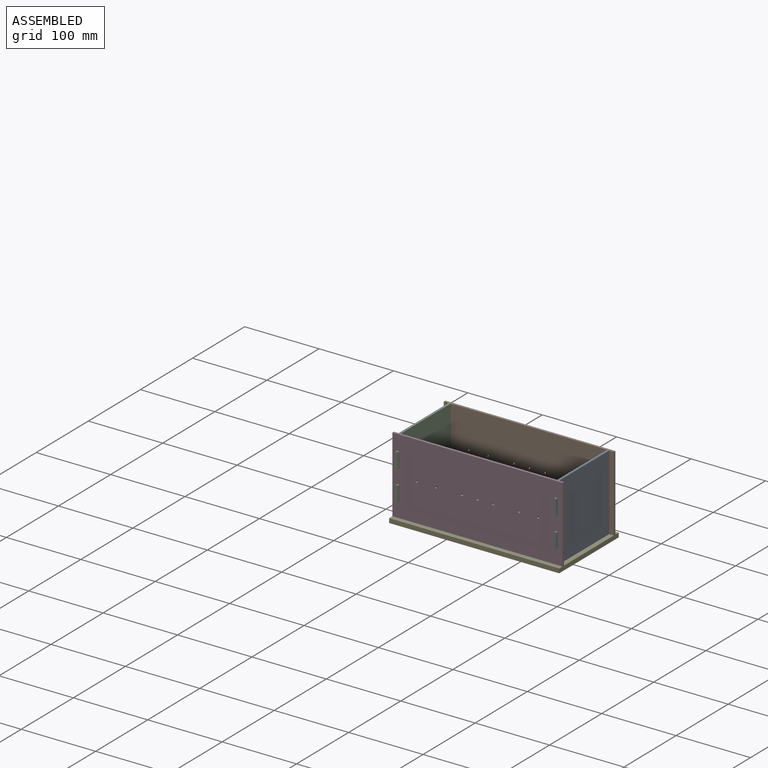
[diagram: assembled view]
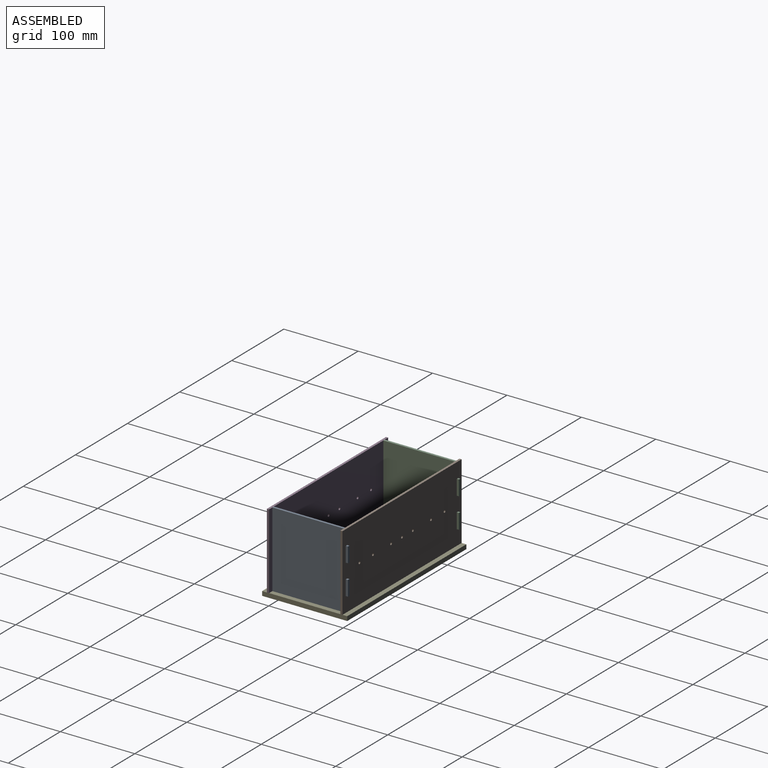
[diagram: assembled view, second angle]
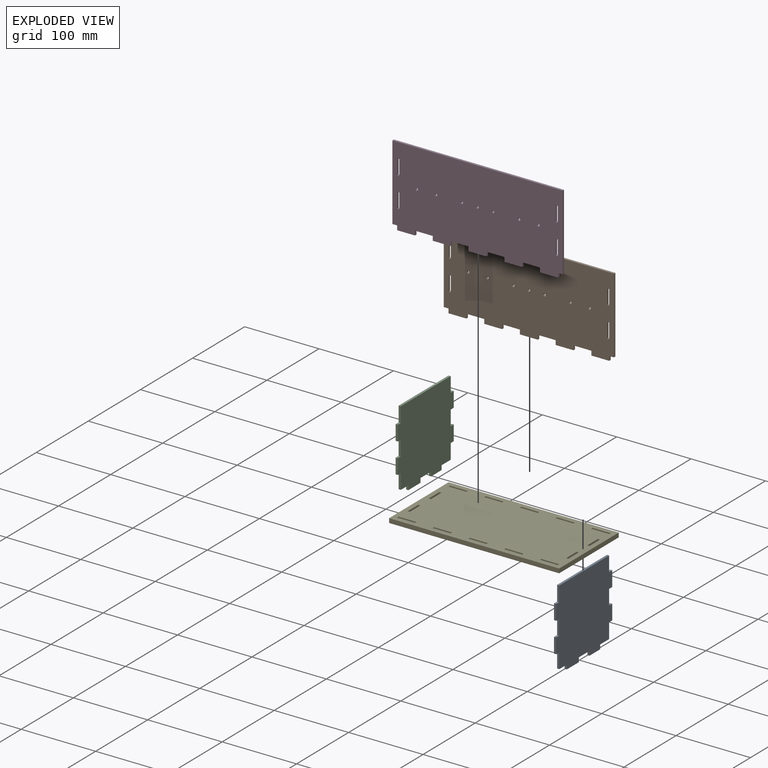
[diagram: exploded view]
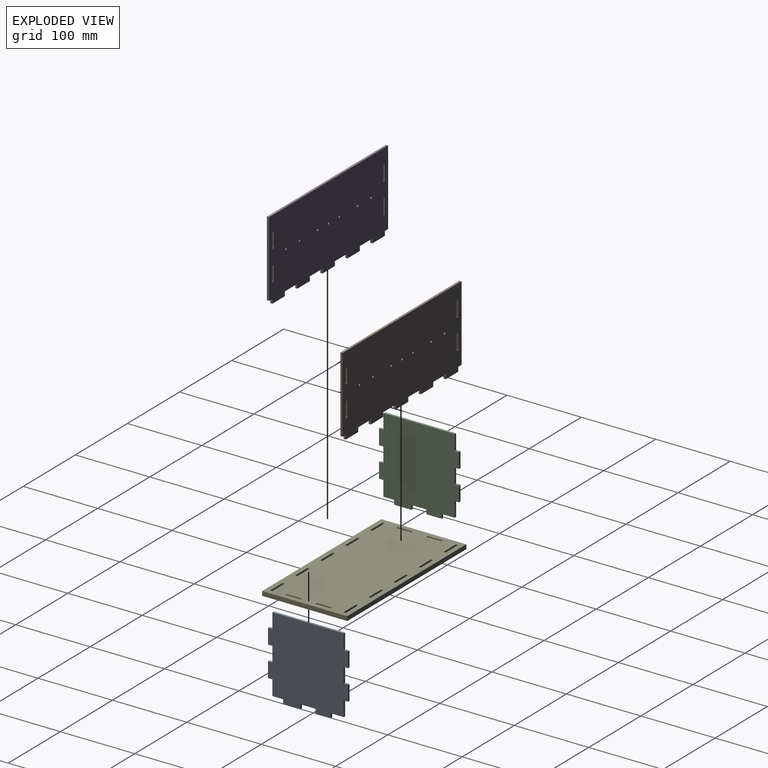
[diagram: exploded view, second angle]
ASSEMBLY  parts=5 mates=4
PART A: 30 faces, bbox 107.4x2.9x107.4 mm
  f0: plane 20.32x2.92mm, normal (-1,0,0), area 59.4mm2, adj f1,f27,f28,f29
  f1: plane 17.4x2.92mm, normal (0,0,-1), area 50.8mm2, adj f0,f2,f28,f29
  f2: plane 5.84x2.92mm, normal (-1,0,0), area 17.1mm2, adj f1,f3,f28,f29
  f3: plane 20.32x2.92mm, normal (0,0,-1), area 59.4mm2, adj f2,f4,f28,f29
  f4: plane 5.84x2.92mm, normal (1,0,0), area 17.1mm2, adj f3,f5,f28,f29
  f5: plane 20.32x2.92mm, normal (0,0,-1), area 59.4mm2, adj f4,f6,f28,f29
  f6: plane 5.84x2.92mm, normal (-1,0,0), area 17.1mm2, adj f5,f7,f28,f29
  f7: plane 23.24x2.92mm, normal (0,0,-1), area 67.9mm2, adj f6,f8,f28,f29
  f8: plane 5.84x2.92mm, normal (1,0,0), area 17.1mm2, adj f7,f9,f28,f29
  f9: plane 14.48x2.92mm, normal (0,0,-1), area 42.3mm2, adj f8,f10,f28,f29
  f10: plane 20.32x2.92mm, normal (1,0,0), area 59.4mm2, adj f9,f11,f28,f29
  f11: plane 5.84x2.92mm, normal (0,0,-1), area 17.1mm2, adj f10,f12,f28,f29
  f12: plane 20.32x2.92mm, normal (1,0,0), area 59.4mm2, adj f11,f13,f28,f29
  f13: plane 5.84x2.92mm, normal (0,0,1), area 17.1mm2, adj f12,f14,f28,f29
  f14: plane 20.32x2.92mm, normal (1,0,0), area 59.4mm2, adj f13,f15,f28,f29
  f15: plane 5.84x2.92mm, normal (0,0,-1), area 17.1mm2, adj f14,f16,f28,f29
  f16: plane 20.32x2.92mm, normal (1,0,0), area 59.4mm2, adj f15,f17,f28,f29
  f17: plane 5.84x2.92mm, normal (0,0,1), area 17.1mm2, adj f16,f18,f28,f29
  f18: plane 20.32x2.92mm, normal (1,0,0), area 59.4mm2, adj f17,f19,f28,f29
  f19: plane 95.76x2.92mm, normal (0,0,1), area 279.7mm2, adj f18,f20,f28,f29
  f20: plane 20.32x2.92mm, normal (-1,0,0), area 59.4mm2, adj f19,f21,f28,f29
  f21: plane 5.84x2.92mm, normal (0,0,1), area 17.1mm2, adj f20,f22,f28,f29
  f22: plane 20.32x2.92mm, normal (-1,0,0), area 59.4mm2, adj f21,f23,f28,f29
  f23: plane 5.84x2.92mm, normal (0,0,-1), area 17.1mm2, adj f22,f24,f28,f29
  f24: plane 20.32x2.92mm, normal (-1,0,0), area 59.4mm2, adj f23,f25,f28,f29
  f25: plane 5.84x2.92mm, normal (0,0,1), area 17.1mm2, adj f24,f26,f28,f29
  f26: plane 20.32x2.92mm, normal (-1,0,0), area 59.4mm2, adj f25,f27,f28,f29
  f27: plane 5.84x2.92mm, normal (0,0,-1), area 17.1mm2, adj f0,f26,f28,f29
  f28: plane 107.44x107.44mm, normal (0,-1,0), area 10458.3mm2, adj f0,f1,f2,f3,f4,f5,f6,f7
  f29: plane 107.44x107.44mm, normal (0,1,0), area 10458.3mm2, adj f0,f1,f2,f3,f4,f5,f6,f7
PART B: 49 faces, bbox 228.6x2.9x107.4 mm
  f0: plane 20.32x2.92mm, normal (1,0,0), area 59.4mm2, adj f1,f46,f47,f48
  f1: plane 2.92x2.92mm, normal (0,0,-1), area 8.5mm2, adj f0,f2,f47,f48
  f2: plane 20.32x2.92mm, normal (-1,0,0), area 59.4mm2, adj f1,f46,f47,f48
  f3: plane 2.92x2.92mm, normal (0,0,-1), area 8.5mm2, adj f4,f35,f47,f48
  f4: plane 20.32x2.92mm, normal (-1,0,0), area 59.4mm2, adj f3,f5,f47,f48
  f5: plane 2.92x2.92mm, normal (0,0,1), area 8.5mm2, adj f4,f35,f47,f48
  f6: plane 23.99x2.92mm, normal (0,0,-1), area 70.1mm2, adj f7,f36,f47,f48
  f7: plane 5.84x2.92mm, normal (-1,0,0), area 17.1mm2, adj f6,f8,f47,f48
  f8: plane 23.99x2.92mm, normal (0,0,-1), area 70.1mm2, adj f7,f9,f47,f48
  f9: plane 5.84x2.92mm, normal (1,0,0), area 17.1mm2, adj f8,f10,f47,f48
  f10: plane 23.99x2.92mm, normal (0,0,-1), area 70.1mm2, adj f9,f11,f47,f48
  f11: plane 5.84x2.92mm, normal (-1,0,0), area 17.1mm2, adj f10,f12,f47,f48
  f12: plane 23.99x2.92mm, normal (0,0,-1), area 70.1mm2, adj f11,f13,f47,f48
  f13: plane 5.84x2.92mm, normal (1,0,0), area 17.1mm2, adj f12,f14,f47,f48
  f14: plane 6.35x2.92mm, normal (0,0,-1), area 18.5mm2, adj f13,f15,f47,f48
  f15: plane 101.6x2.92mm, normal (1,0,0), area 296.8mm2, adj f14,f16,f47,f48
  f16: plane 228.6x2.92mm, normal (0,0,1), area 667.7mm2, adj f15,f17,f47,f48
  f17: plane 101.6x2.92mm, normal (-1,0,0), area 296.8mm2, adj f16,f18,f47,f48
  f18: plane 6.35x2.92mm, normal (0,0,-1), area 18.5mm2, adj f17,f19,f47,f48
  f19: plane 5.84x2.92mm, normal (-1,0,0), area 17.1mm2, adj f18,f20,f47,f48
  f20: plane 23.99x2.92mm, normal (0,0,-1), area 70.1mm2, adj f19,f21,f47,f48
  f21: plane 5.84x2.92mm, normal (1,0,0), area 17.1mm2, adj f20,f22,f47,f48
  f22: plane 23.99x2.92mm, normal (0,0,-1), area 70.1mm2, adj f21,f23,f47,f48
  f23: plane 5.84x2.92mm, normal (-1,0,0), area 17.1mm2, adj f22,f24,f47,f48
  f24: plane 23.99x2.92mm, normal (0,0,-1), area 70.1mm2, adj f23,f25,f47,f48
  f25: plane 5.84x2.92mm, normal (1,0,0), area 17.1mm2, adj f24,f26,f47,f48
  f26: plane 23.99x2.92mm, normal (0,0,-1), area 70.1mm2, adj f25,f27,f47,f48
  f27: plane 5.84x2.92mm, normal (-1,0,0), area 17.1mm2, adj f26,f28,f47,f48
  f28: plane 23.99x2.92mm, normal (0,0,-1), area 70.1mm2, adj f27,f36,f47,f48
  f29: plane 20.32x2.92mm, normal (1,0,0), area 59.4mm2, adj f30,f44,f47,f48
  f30: plane 2.92x2.92mm, normal (0,0,-1), area 8.5mm2, adj f29,f31,f47,f48
  f31: plane 20.32x2.92mm, normal (-1,0,0), area 59.4mm2, adj f30,f44,f47,f48
  f32: plane 2.92x2.92mm, normal (0,0,1), area 8.5mm2, adj f33,f45,f47,f48
  f33: plane 20.32x2.92mm, normal (1,0,0), area 59.4mm2, adj f32,f34,f47,f48
  f34: plane 2.92x2.92mm, normal (0,0,-1), area 8.5mm2, adj f33,f45,f47,f48
  f35: plane 20.32x2.92mm, normal (1,0,0), area 59.4mm2, adj f3,f5,f47,f48
  f36: plane 5.84x2.92mm, normal (1,0,0), area 17.1mm2, adj f6,f28,f47,f48
  f37: cylinder r=1.65mm len=3.3mm, axis (0,1,0), area 30.3mm2, adj f47,f48
  f38: cylinder r=1.65mm len=3.3mm, axis (0,1,0), area 30.3mm2, adj f47,f48
  f39: cylinder r=1.65mm len=3.3mm, axis (0,1,0), area 30.3mm2, adj f47,f48
  f40: cylinder r=1.65mm len=3.3mm, axis (0,1,0), area 30.3mm2, adj f47,f48
  f41: cylinder r=1.65mm len=3.3mm, axis (0,1,0), area 30.3mm2, adj f47,f48
  f42: cylinder r=1.65mm len=3.3mm, axis (0,1,0), area 30.3mm2, adj f47,f48
  f43: cylinder r=1.65mm len=3.3mm, axis (0,1,0), area 30.3mm2, adj f47,f48
  f44: plane 2.92x2.92mm, normal (0,0,1), area 8.5mm2, adj f29,f31,f47,f48
  f45: plane 20.32x2.92mm, normal (-1,0,0), area 59.4mm2, adj f32,f34,f47,f48
  f46: plane 2.92x2.92mm, normal (0,0,1), area 8.5mm2, adj f0,f2,f47,f48
  f47: plane 228.6x107.44mm, normal (0,-1,0), area 23629.1mm2, adj f0,f1,f2,f3,f4,f5,f6,f7
  f48: plane 228.6x107.44mm, normal (0,1,0), area 23629.1mm2, adj f0,f1,f2,f3,f4,f5,f6,f7
PART C: same geometry as A
PART D: same geometry as B
PART E: 62 faces, bbox 228.6x114.3x5.8 mm
  f0: plane 5.84x2.92mm, normal (1,0,0), area 17.1mm2, adj f1,f59,f60,f61
  f1: plane 23.99x5.84mm, normal (0,-1,0), area 140.1mm2, adj f0,f2,f60,f61
  f2: plane 5.84x2.92mm, normal (-1,0,0), area 17.1mm2, adj f1,f59,f60,f61
  f3: plane 5.84x2.92mm, normal (1,0,0), area 17.1mm2, adj f4,f45,f60,f61
  f4: plane 23.99x5.84mm, normal (0,-1,0), area 140.1mm2, adj f3,f5,f60,f61
  f5: plane 5.84x2.92mm, normal (-1,0,0), area 17.1mm2, adj f4,f45,f60,f61
  f6: plane 23.99x5.84mm, normal (0,1,0), area 140.1mm2, adj f7,f46,f60,f61
  f7: plane 5.84x2.92mm, normal (1,0,0), area 17.1mm2, adj f6,f8,f60,f61
  f8: plane 23.99x5.84mm, normal (0,-1,0), area 140.1mm2, adj f7,f46,f60,f61
  f9: plane 23.99x5.84mm, normal (0,1,0), area 140.1mm2, adj f10,f47,f60,f61
  f10: plane 5.84x2.92mm, normal (1,0,0), area 17.1mm2, adj f9,f11,f60,f61
  f11: plane 23.99x5.84mm, normal (0,-1,0), area 140.1mm2, adj f10,f47,f60,f61
  f12: plane 23.99x5.84mm, normal (0,-1,0), area 140.1mm2, adj f13,f48,f60,f61
  f13: plane 5.84x2.92mm, normal (-1,0,0), area 17.1mm2, adj f12,f14,f60,f61
  f14: plane 23.99x5.84mm, normal (0,1,0), area 140.1mm2, adj f13,f48,f60,f61
  f15: plane 5.84x2.92mm, normal (0,-1,0), area 17.1mm2, adj f16,f49,f60,f61
  f16: plane 20.32x5.84mm, normal (-1,0,0), area 118.7mm2, adj f15,f17,f60,f61
  f17: plane 5.84x2.92mm, normal (0,1,0), area 17.1mm2, adj f16,f49,f60,f61
  f18: plane 5.84x2.92mm, normal (0,-1,0), area 17.1mm2, adj f19,f50,f60,f61
  f19: plane 20.32x5.84mm, normal (-1,0,0), area 118.7mm2, adj f18,f20,f60,f61
  f20: plane 5.84x2.92mm, normal (0,1,0), area 17.1mm2, adj f19,f50,f60,f61
  f21: plane 5.84x2.92mm, normal (0,1,0), area 17.1mm2, adj f22,f51,f60,f61
  f22: plane 20.32x5.84mm, normal (1,0,0), area 118.7mm2, adj f21,f23,f60,f61
  f23: plane 5.84x2.92mm, normal (0,-1,0), area 17.1mm2, adj f22,f51,f60,f61
  f24: plane 20.32x5.84mm, normal (1,0,0), area 118.7mm2, adj f25,f52,f60,f61
  f25: plane 5.84x2.92mm, normal (0,-1,0), area 17.1mm2, adj f24,f26,f60,f61
  f26: plane 20.32x5.84mm, normal (-1,0,0), area 118.7mm2, adj f25,f52,f60,f61
  f27: plane 23.99x5.84mm, normal (0,1,0), area 140.1mm2, adj f28,f53,f60,f61
  f28: plane 5.84x2.92mm, normal (1,0,0), area 17.1mm2, adj f27,f29,f60,f61
  f29: plane 23.99x5.84mm, normal (0,-1,0), area 140.1mm2, adj f28,f53,f60,f61
  f30: plane 5.84x2.92mm, normal (1,0,0), area 17.1mm2, adj f31,f54,f60,f61
  f31: plane 23.99x5.84mm, normal (0,-1,0), area 140.1mm2, adj f30,f32,f60,f61
  f32: plane 5.84x2.92mm, normal (-1,0,0), area 17.1mm2, adj f31,f54,f60,f61
  f33: plane 5.84x2.92mm, normal (1,0,0), area 17.1mm2, adj f34,f55,f60,f61
  f34: plane 23.99x5.84mm, normal (0,-1,0), area 140.1mm2, adj f33,f35,f60,f61
  f35: plane 5.84x2.92mm, normal (-1,0,0), area 17.1mm2, adj f34,f55,f60,f61
  f36: plane 5.84x2.92mm, normal (1,0,0), area 17.1mm2, adj f37,f56,f60,f61
  f37: plane 23.99x5.84mm, normal (0,-1,0), area 140.1mm2, adj f36,f38,f60,f61
  f38: plane 5.84x2.92mm, normal (-1,0,0), area 17.1mm2, adj f37,f56,f60,f61
  f39: plane 228.6x5.84mm, normal (0,1,0), area 1335.5mm2, adj f40,f57,f60,f61
  f40: plane 114.3x5.84mm, normal (-1,0,0), area 667.7mm2, adj f39,f41,f60,f61
  f41: plane 228.6x5.84mm, normal (0,-1,0), area 1335.5mm2, adj f40,f57,f60,f61
  f42: plane 23.99x5.84mm, normal (0,-1,0), area 140.1mm2, adj f43,f58,f60,f61
  f43: plane 5.84x2.92mm, normal (-1,0,0), area 17.1mm2, adj f42,f44,f60,f61
  f44: plane 23.99x5.84mm, normal (0,1,0), area 140.1mm2, adj f43,f58,f60,f61
  f45: plane 23.99x5.84mm, normal (0,1,0), area 140.1mm2, adj f3,f5,f60,f61
  f46: plane 5.84x2.92mm, normal (-1,0,0), area 17.1mm2, adj f6,f8,f60,f61
  f47: plane 5.84x2.92mm, normal (-1,0,0), area 17.1mm2, adj f9,f11,f60,f61
  f48: plane 5.84x2.92mm, normal (1,0,0), area 17.1mm2, adj f12,f14,f60,f61
  f49: plane 20.32x5.84mm, normal (1,0,0), area 118.7mm2, adj f15,f17,f60,f61
  f50: plane 20.32x5.84mm, normal (1,0,0), area 118.7mm2, adj f18,f20,f60,f61
  f51: plane 20.32x5.84mm, normal (-1,0,0), area 118.7mm2, adj f21,f23,f60,f61
  f52: plane 5.84x2.92mm, normal (0,1,0), area 17.1mm2, adj f24,f26,f60,f61
  f53: plane 5.84x2.92mm, normal (-1,0,0), area 17.1mm2, adj f27,f29,f60,f61
  f54: plane 23.99x5.84mm, normal (0,1,0), area 140.1mm2, adj f30,f32,f60,f61
  f55: plane 23.99x5.84mm, normal (0,1,0), area 140.1mm2, adj f33,f35,f60,f61
  f56: plane 23.99x5.84mm, normal (0,1,0), area 140.1mm2, adj f36,f38,f60,f61
  f57: plane 114.3x5.84mm, normal (1,0,0), area 667.7mm2, adj f39,f41,f60,f61
  f58: plane 5.84x2.92mm, normal (1,0,0), area 17.1mm2, adj f42,f44,f60,f61
  f59: plane 23.99x5.84mm, normal (0,1,0), area 140.1mm2, adj f0,f2,f60,f61
  f60: plane 228.6x114.3mm, normal (0,0,1), area 25190.8mm2, adj f0,f1,f2,f3,f4,f5,f6,f7
  f61: plane 228.6x114.3mm, normal (0,0,-1), area 25190.8mm2, adj f0,f1,f2,f3,f4,f5,f6,f7
PLACE A rot(axis=(0,0,-1),90deg) t=(107.78,-1.72,52.19)mm
PLACE B t=(-0.17,49.08,52.19)mm
PLACE C rot(axis=(0,0,-1),90deg) t=(-105.2,-1.72,52.19)mm
PLACE D t=(-0.17,-49.6,52.19)mm
PLACE E t=(-0.17,-1.72,-4.45)mm fixed
MATE parallel C.f8 <-> E.f17  axis (0,-1,0) through (-106.66,-35.12,-1.53)mm
MATE parallel D.f19 <-> E.f48  axis (-1,0,0) through (-108.12,-51.06,-1.53)mm
MATE parallel B.f19 <-> E.f0  axis (-1,0,0) through (-108.12,47.62,-1.53)mm
MATE parallel A.f8 <-> E.f21  axis (0,-1,0) through (106.32,-35.12,-1.53)mm
